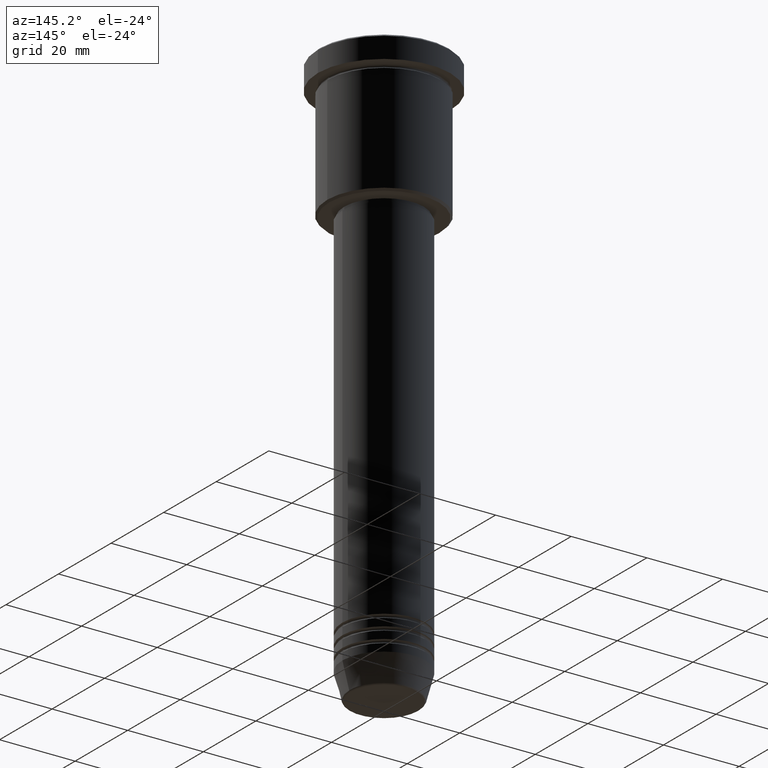
[diagram: clean part render]
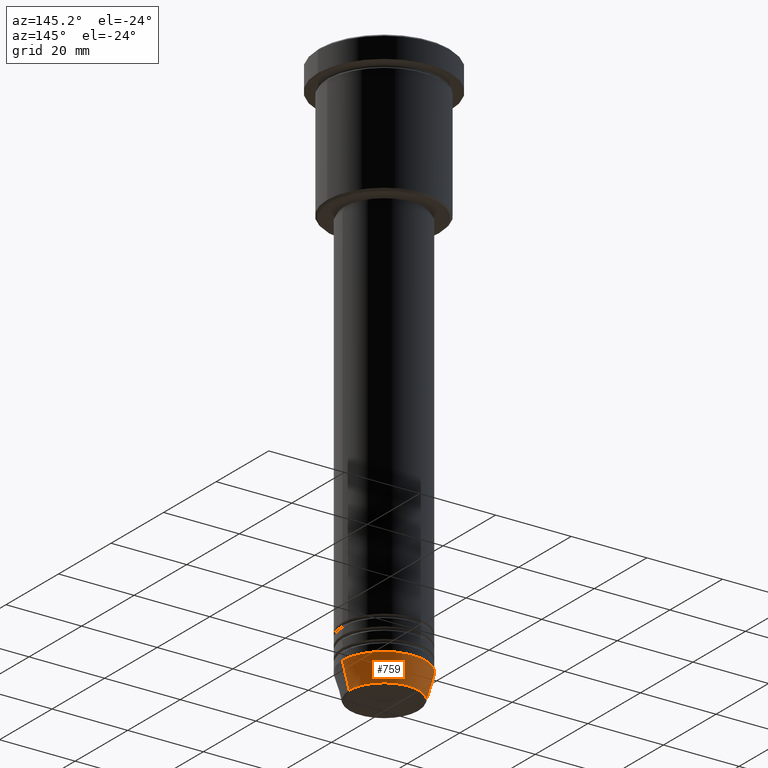
[diagram: same view with one face highlighted and labeled with its STEP entity id]
A machine part, auxiliary view. The second image highlights one B-rep face of the part: STEP entity #759.
In plain terms, the highlighted conical surface has half-angle 15 deg.
Its self-contained STEP definition (entity closure, byte-faithful):
#47 = DIRECTION ( 'NONE',  ( -0.000000000000000000, -0.000000000000000000, 1.000000000000000000 ) ) ;
#83 = CARTESIAN_POINT ( 'NONE',  ( 11.00000000000000000, 0.000000000000000000, -144.0000000000000284 ) ) ;
#106 = AXIS2_PLACEMENT_3D ( 'NONE', #768, #610, #346 ) ;
#109 = DIRECTION ( 'NONE',  ( -0.000000000000000000, -0.000000000000000000, 1.000000000000000000 ) ) ;
#114 = DIRECTION ( 'NONE',  ( 1.000000000000000000, 0.000000000000000000, 0.000000000000000000 ) ) ;
#115 = EDGE_CURVE ( 'NONE', #931, #546, #742, .T. ) ;
#125 = CIRCLE ( 'NONE', #106, 9.223655072137189492 ) ;
#141 = AXIS2_PLACEMENT_3D ( 'NONE', #310, #109, #114 ) ;
#229 = EDGE_CURVE ( 'NONE', #331, #296, #438, .T. ) ;
#276 = DIRECTION ( 'NONE',  ( -0.2588190451025213501, 3.169619151431772337E-17, 0.9659258262890680902 ) ) ;
#296 = VERTEX_POINT ( 'NONE', #943 ) ;
#307 = DIRECTION ( 'NONE',  ( 1.000000000000000000, 0.000000000000000000, 0.000000000000000000 ) ) ;
#310 = CARTESIAN_POINT ( 'NONE',  ( 0.000000000000000000, 0.000000000000000000, -144.0000000000000284 ) ) ;
#331 = VERTEX_POINT ( 'NONE', #443 ) ;
#346 = DIRECTION ( 'NONE',  ( 1.000000000000000000, 0.000000000000000000, 0.000000000000000000 ) ) ;
#370 = ORIENTED_EDGE ( 'NONE', *, *, #797, .T. ) ;
#373 = ORIENTED_EDGE ( 'NONE', *, *, #229, .F. ) ;
#385 = CONICAL_SURFACE ( 'NONE', #771, 11.00000000000000000, 0.2617993877991500740 ) ;
#421 = CARTESIAN_POINT ( 'NONE',  ( -9.223655072137189492, 1.238341722557647202E-15, -150.6294095225512706 ) ) ;
#438 = LINE ( 'NONE', #83, #1142 ) ;
#443 = CARTESIAN_POINT ( 'NONE',  ( 9.223655072137189492, 0.000000000000000000, -150.6294095225512706 ) ) ;
#534 = DIRECTION ( 'NONE',  ( 0.2588190451025213501, 0.000000000000000000, 0.9659258262890680902 ) ) ;
#535 = VECTOR ( 'NONE', #276, 1000.000000000000000 ) ;
#546 = VERTEX_POINT ( 'NONE', #750 ) ;
#610 = DIRECTION ( 'NONE',  ( -0.000000000000000000, -0.000000000000000000, 1.000000000000000000 ) ) ;
#742 = LINE ( 'NONE', #1102, #535 ) ;
#750 = CARTESIAN_POINT ( 'NONE',  ( -11.00000000000000000, 1.347111479062088405E-15, -144.0000000000000284 ) ) ;
#759 = ADVANCED_FACE ( 'NONE', ( #1046 ), #385, .T. ) ;
#768 = CARTESIAN_POINT ( 'NONE',  ( 0.000000000000000000, 0.000000000000000000, -150.6294095225512706 ) ) ;
#771 = AXIS2_PLACEMENT_3D ( 'NONE', #1134, #47, #307 ) ;
#797 = EDGE_CURVE ( 'NONE', #331, #931, #125, .T. ) ;
#931 = VERTEX_POINT ( 'NONE', #421 ) ;
#941 = CIRCLE ( 'NONE', #141, 11.00000000000000000 ) ;
#943 = CARTESIAN_POINT ( 'NONE',  ( 11.00000000000000000, 0.000000000000000000, -144.0000000000000284 ) ) ;
#990 = ORIENTED_EDGE ( 'NONE', *, *, #1135, .F. ) ;
#1001 = EDGE_LOOP ( 'NONE', ( #370, #1153, #990, #373 ) ) ;
#1046 = FACE_OUTER_BOUND ( 'NONE', #1001, .T. ) ;
#1102 = CARTESIAN_POINT ( 'NONE',  ( -11.00000000000000000, 1.347111479062088405E-15, -144.0000000000000284 ) ) ;
#1134 = CARTESIAN_POINT ( 'NONE',  ( 0.000000000000000000, 0.000000000000000000, -144.0000000000000284 ) ) ;
#1135 = EDGE_CURVE ( 'NONE', #296, #546, #941, .T. ) ;
#1142 = VECTOR ( 'NONE', #534, 1000.000000000000000 ) ;
#1153 = ORIENTED_EDGE ( 'NONE', *, *, #115, .T. ) ;